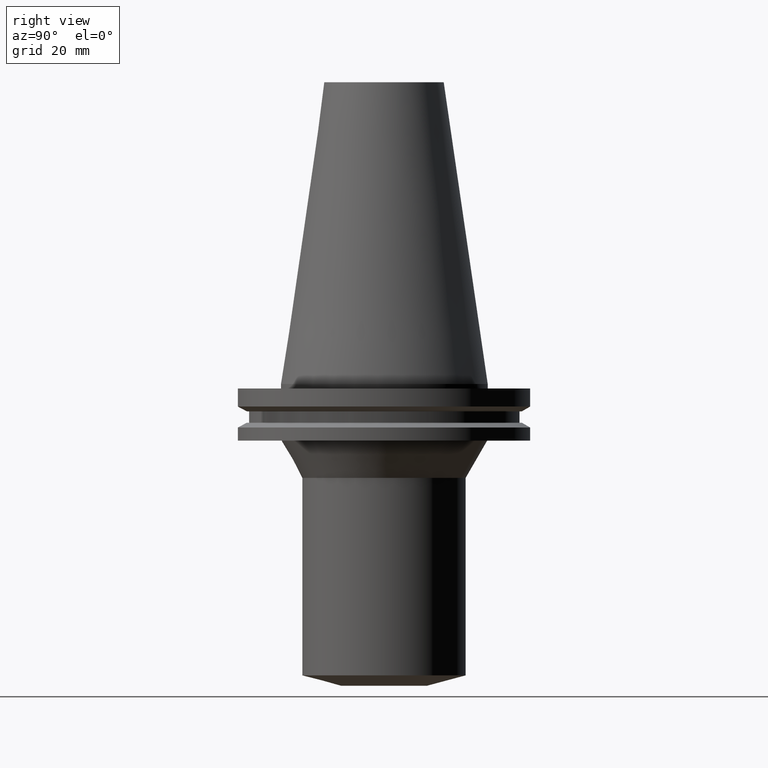
[diagram: clean part render]
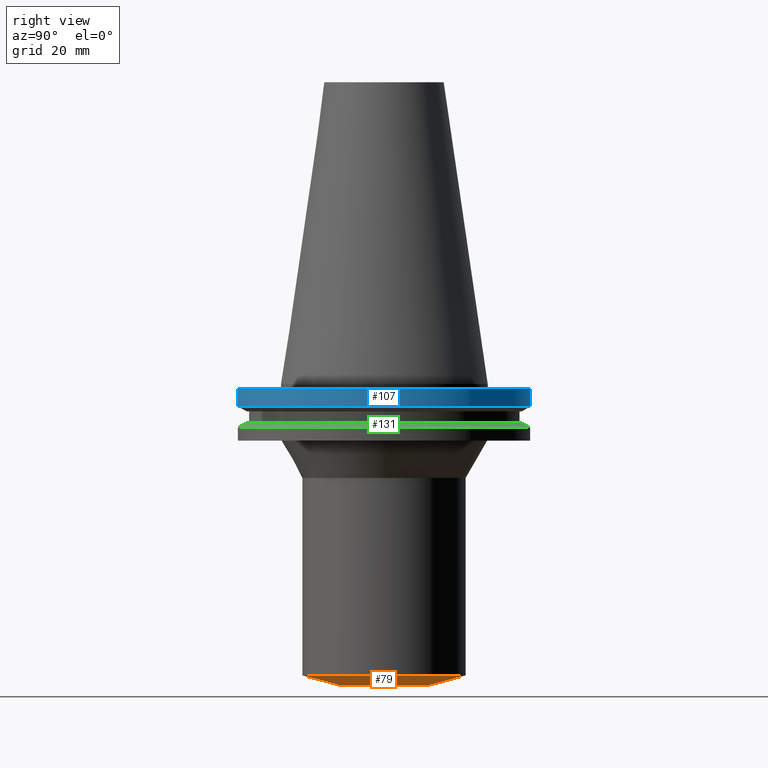
[diagram: same view with three faces highlighted in distinct colors, each labeled with its STEP entity id]
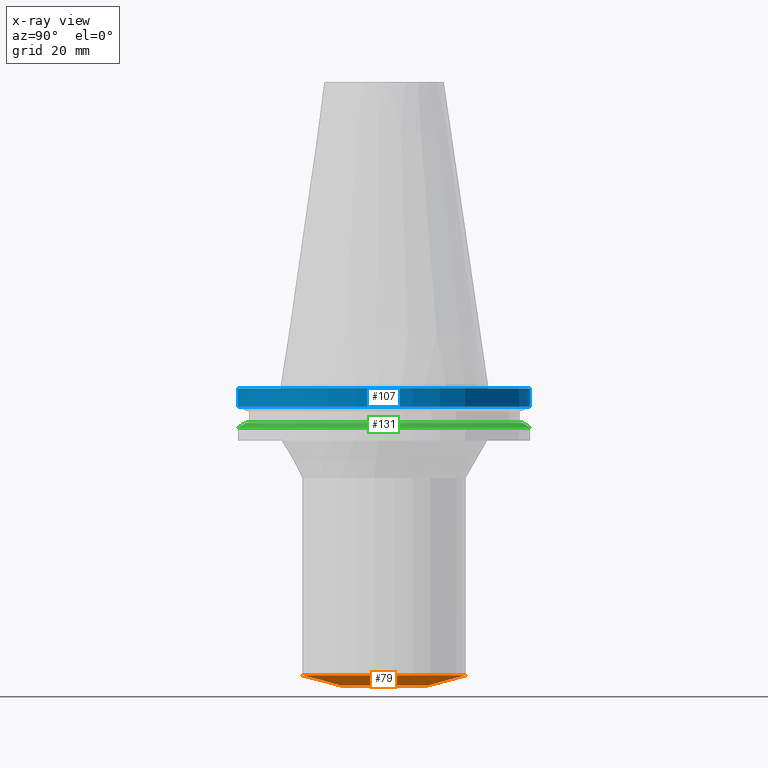
[diagram: x-ray of the same camera — body ghosted, the three highlighted faces saturated]
A machine part, right view with three faces highlighted in distinct colors.
The next image is the same camera in x-ray (body ghosted, the three faces saturated) — at least one of them is partly hidden behind the body in this view.
Their STEP definitions:

[orange] entity #79 — the highlighted conical surface has half-angle 75 deg.
#79=ADVANCED_FACE('Unnamed[1]',(#189,#190),#191,.T.);
#92=EDGE_CURVE('Unnamed[1]',#210,#210,#211,.T.);
#120=EDGE_CURVE('Unnamed[1]',#254,#254,#255,.T.);
#189=FACE_BOUND('',#331,.T.);
#190=FACE_BOUND('',#332,.T.);
#191=CONICAL_SURFACE('',#333,20.999999999904,1.30899693900024);
#210=VERTEX_POINT('',#357);
#211=CIRCLE('',#358,14.5000000000146);
#254=VERTEX_POINT('',#412);
#255=CIRCLE('',#413,27.4999999997934);
#331=EDGE_LOOP('',(#482));
#332=EDGE_LOOP('',(#483));
#333=AXIS2_PLACEMENT_3D('',#484,#485,#486);
#357=CARTESIAN_POINT('',(6.22120573966849E-015,14.5000000000146,-101.599999999999));
#358=AXIS2_PLACEMENT_3D('',#507,#508,#509);
#412=CARTESIAN_POINT('',(6.00791271112677E-015,27.4999999997934,-98.1166604985162));
#413=AXIS2_PLACEMENT_3D('',#557,#558,#559);
#482=ORIENTED_EDGE('',*,*,#92,.F.);
#483=ORIENTED_EDGE('',*,*,#120,.T.);
#484=CARTESIAN_POINT('',(6.11455922539763E-015,1.22291184507953E-014,-99.8583302492575));
#485=DIRECTION('',(-6.12323399573677E-017,-1.22464679914715E-016,1.0));
#486=DIRECTION('',(-1.23259516440749E-032,1.0,1.22464679914715E-016));
#507=CARTESIAN_POINT('',(6.22120573966849E-015,1.2442411479337E-014,-101.599999999999));
#508=DIRECTION('',(6.12323399573677E-017,1.224646799147E-016,-1.0));
#509=DIRECTION('',(-1.23259516440783E-032,1.0,1.224646799147E-016));
#557=CARTESIAN_POINT('',(6.00791271112677E-015,1.20158254222535E-014,-98.1166604985162));
#558=DIRECTION('',(6.12323399573677E-017,1.22464679914722E-016,-1.0));
#559=DIRECTION('',(-1.23259516440796E-032,1.0,1.22464679914722E-016));

[blue] entity #107 — the highlighted cylindrical surface (bore or boss wall) has radius 49.2125 mm, axis along (0, 0, -1).
#66=EDGE_CURVE('Unnamed[1]',#169,#169,#170,.T.);
#107=ADVANCED_FACE('Unnamed[1]',(#233,#234),#235,.T.);
#115=EDGE_CURVE('Unnamed[1]',#247,#247,#248,.T.);
#169=VERTEX_POINT('',#306);
#170=CIRCLE('',#307,49.2125);
#233=FACE_BOUND('',#386,.T.);
#234=FACE_BOUND('',#387,.T.);
#235=CYLINDRICAL_SURFACE('',#388,49.2125);
#247=VERTEX_POINT('',#403);
#248=CIRCLE('',#404,49.2125);
#306=CARTESIAN_POINT('',(9.18485099360509E-017,49.2125,-1.49999999999999));
#307=AXIS2_PLACEMENT_3D('',#460,#461,#462);
#386=EDGE_LOOP('',(#532));
#387=EDGE_LOOP('',(#533));
#388=AXIS2_PLACEMENT_3D('',#534,#535,#536);
#403=CARTESIAN_POINT('',(4.64988177918915E-016,49.2125,-7.59383323));
#404=AXIS2_PLACEMENT_3D('',#549,#550,#551);
#460=CARTESIAN_POINT('',(9.18485099360515E-017,1.83697019872103E-016,-1.5));
#461=DIRECTION('',(6.12323399573677E-017,1.22464679914777E-016,-1.0));
#462=DIRECTION('',(-1.23259516440769E-032,1.0,1.22464679914777E-016));
#532=ORIENTED_EDGE('',*,*,#115,.F.);
#533=ORIENTED_EDGE('',*,*,#66,.T.);
#534=CARTESIAN_POINT('',(2.78418343927483E-016,5.56836687854967E-016,-4.546916615));
#535=DIRECTION('',(6.12323399573677E-017,1.22464679914777E-016,-1.0));
#536=DIRECTION('',(-1.23259516440769E-032,1.0,1.22464679914777E-016));
#549=CARTESIAN_POINT('',(4.64988177918915E-016,9.29976355837831E-016,-7.59383323));
#550=DIRECTION('',(6.12323399573677E-017,1.22464679914777E-016,-1.0));
#551=DIRECTION('',(-1.23259516440769E-032,1.0,1.22464679914777E-016));

[green] entity #131 — the highlighted conical surface has half-angle 60 deg.
#68=EDGE_CURVE('Unnamed[1]',#172,#172,#173,.T.);
#101=EDGE_CURVE('Unnamed[1]',#224,#224,#225,.T.);
#131=ADVANCED_FACE('Unnamed[1]',(#269,#270),#271,.T.);
#172=VERTEX_POINT('',#310);
#173=CIRCLE('',#311,49.2125);
#224=VERTEX_POINT('',#375);
#225=CIRCLE('',#376,46.43053755);
#269=FACE_BOUND('',#430,.T.);
#270=FACE_BOUND('',#431,.T.);
#271=CONICAL_SURFACE('',#432,47.821518775,1.04719755103023);
#310=CARTESIAN_POINT('',(8.96819062732941E-016,49.2125,-14.64616677));
#311=AXIS2_PLACEMENT_3D('',#463,#464,#465);
#375=CARTESIAN_POINT('',(7.98469713044073E-016,46.43053755,-13.04));
#376=AXIS2_PLACEMENT_3D('',#522,#523,#524);
#430=EDGE_LOOP('',(#571));
#431=EDGE_LOOP('',(#572));
#432=AXIS2_PLACEMENT_3D('',#573,#574,#575);
#463=CARTESIAN_POINT('',(8.96819062732942E-016,1.79363812546588E-015,-14.64616677));
#464=DIRECTION('',(6.12323399573677E-017,1.22464679914777E-016,-1.0));
#465=DIRECTION('',(-1.23259516440769E-032,1.0,1.22464679914777E-016));
#522=CARTESIAN_POINT('',(7.98469713044074E-016,1.59693942608815E-015,-13.04));
#523=DIRECTION('',(6.12323399573677E-017,1.22464679914738E-016,-1.0));
#524=DIRECTION('',(-1.23259516440814E-032,1.0,1.22464679914738E-016));
#571=ORIENTED_EDGE('',*,*,#68,.F.);
#572=ORIENTED_EDGE('',*,*,#101,.T.);
#573=CARTESIAN_POINT('',(8.47644387888508E-016,1.69528877577702E-015,-13.843083385));
#574=DIRECTION('',(6.12323399573677E-017,1.22464679914758E-016,-1.0));
#575=DIRECTION('',(-1.23259516440753E-032,1.0,1.22464679914758E-016));